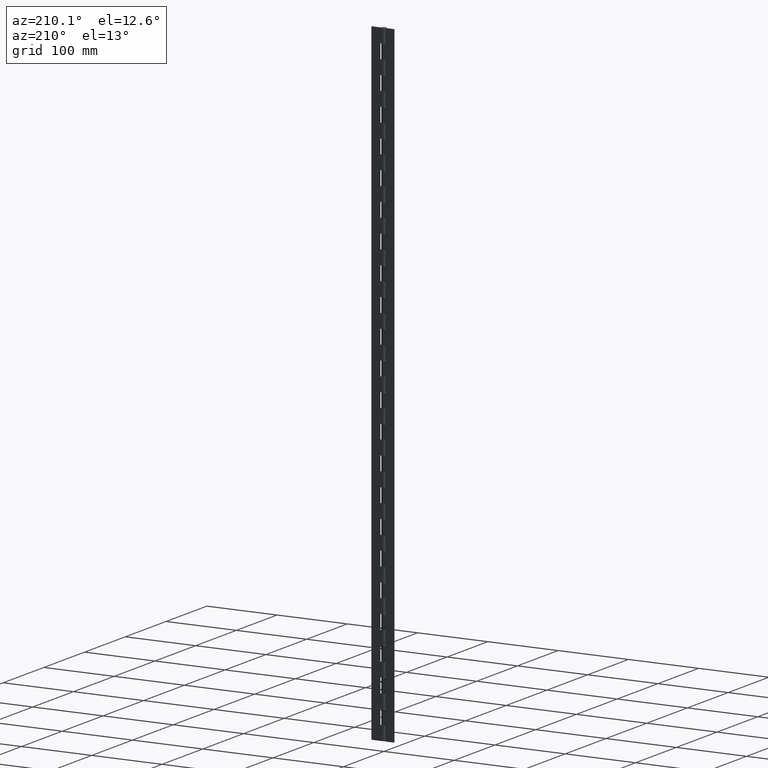
[diagram: clean part render]
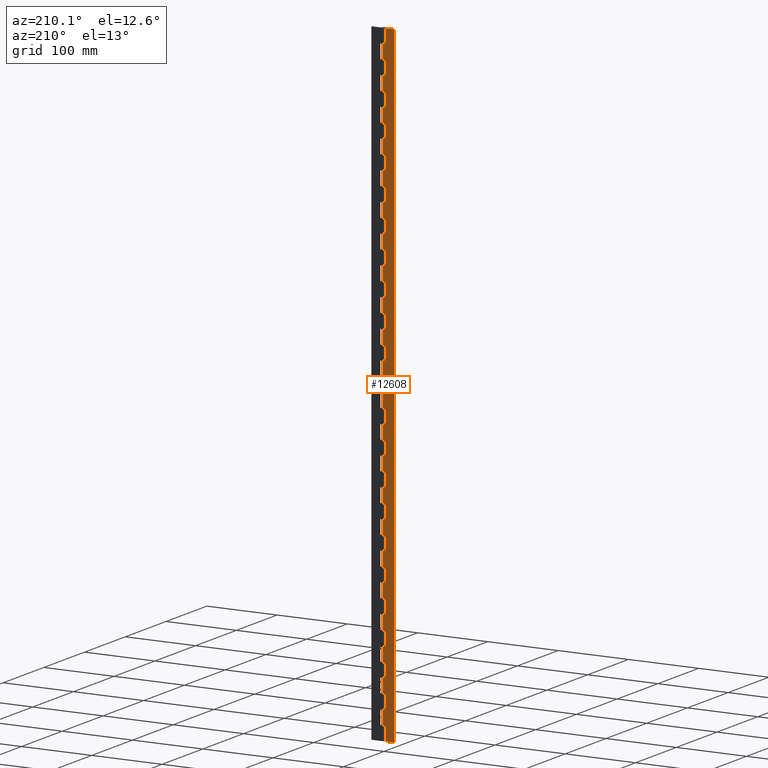
[diagram: same view with one face highlighted and labeled with its STEP entity id]
A machine part, auxiliary view. The second image highlights one B-rep face of the part: STEP entity #12608.
In plain terms, the highlighted face is a freeform B-spline surface patch.
Its self-contained STEP definition (entity closure, byte-faithful):
#6567=CARTESIAN_POINT('',(-4.0,3.250000000000000,0.0));
#6568=VERTEX_POINT('',#6567);
#6576=CARTESIAN_POINT('',(-4.0,3.250000000000000,20.000022000000051));
#6577=VERTEX_POINT('',#6576);
#6578=CARTESIAN_POINT('',(-4.0,3.250000000000000,20.000022000000051));
#6579=CARTESIAN_POINT('',(-4.0,3.250000000000000,0.0));
#6580=QUASI_UNIFORM_CURVE('',1,(#6578,#6579),.UNSPECIFIED.,.F.,.U.);
#6581=EDGE_CURVE('',#6577,#6568,#6580,.T.);
#6605=CARTESIAN_POINT('',(0.0,3.250000000000000,20.000022000000051));
#6606=VERTEX_POINT('',#6605);
#6660=CARTESIAN_POINT('',(0.0,3.250000000000000,20.000022000000051));
#6661=CARTESIAN_POINT('',(-4.0,3.250000000000000,20.000022000000051));
#6662=QUASI_UNIFORM_CURVE('',1,(#6660,#6661),.UNSPECIFIED.,.F.,.U.);
#6663=EDGE_CURVE('',#6606,#6577,#6662,.T.);
#6675=CARTESIAN_POINT('',(0.0,3.250000000000000,40.000021999999952));
#6676=VERTEX_POINT('',#6675);
#6696=CARTESIAN_POINT('',(-4.0,3.250000000000000,40.000021999999952));
#6697=VERTEX_POINT('',#6696);
#6698=CARTESIAN_POINT('',(0.0,3.250000000000000,40.000021999999952));
#6699=CARTESIAN_POINT('',(-4.0,3.250000000000000,40.000021999999952));
#6700=QUASI_UNIFORM_CURVE('',1,(#6698,#6699),.UNSPECIFIED.,.F.,.U.);
#6701=EDGE_CURVE('',#6676,#6697,#6700,.T.);
#6751=CARTESIAN_POINT('',(0.0,3.250000000000000,60.000022000000101));
#6752=VERTEX_POINT('',#6751);
#6809=CARTESIAN_POINT('',(-4.0,3.250000000000000,60.000022000000101));
#6810=VERTEX_POINT('',#6809);
#6816=CARTESIAN_POINT('',(-4.0,3.250000000000000,60.000022000000101));
#6817=CARTESIAN_POINT('',(0.0,3.250000000000000,60.000022000000101));
#6818=QUASI_UNIFORM_CURVE('',1,(#6816,#6817),.UNSPECIFIED.,.F.,.U.);
#6819=EDGE_CURVE('',#6810,#6752,#6818,.T.);
#6835=CARTESIAN_POINT('',(-4.0,3.250000000000000,40.000021999999952));
#6836=CARTESIAN_POINT('',(-4.0,3.250000000000000,60.000022000000101));
#6837=QUASI_UNIFORM_CURVE('',1,(#6835,#6836),.UNSPECIFIED.,.F.,.U.);
#6838=EDGE_CURVE('',#6697,#6810,#6837,.T.);
#6851=CARTESIAN_POINT('',(0.0,3.250000000000000,80.000021999999888));
#6852=VERTEX_POINT('',#6851);
#6872=CARTESIAN_POINT('',(-4.0,3.250000000000000,80.000021999999888));
#6873=VERTEX_POINT('',#6872);
#6874=CARTESIAN_POINT('',(0.0,3.250000000000000,80.000021999999888));
#6875=CARTESIAN_POINT('',(-4.0,3.250000000000000,80.000021999999888));
#6876=QUASI_UNIFORM_CURVE('',1,(#6874,#6875),.UNSPECIFIED.,.F.,.U.);
#6877=EDGE_CURVE('',#6852,#6873,#6876,.T.);
#6927=CARTESIAN_POINT('',(0.0,3.250000000000000,100.000022000000000));
#6928=VERTEX_POINT('',#6927);
#6985=CARTESIAN_POINT('',(-4.0,3.250000000000000,100.000022000000000));
#6986=VERTEX_POINT('',#6985);
#6992=CARTESIAN_POINT('',(-4.0,3.250000000000000,100.000022000000000));
#6993=CARTESIAN_POINT('',(0.0,3.250000000000000,100.000022000000000));
#6994=QUASI_UNIFORM_CURVE('',1,(#6992,#6993),.UNSPECIFIED.,.F.,.U.);
#6995=EDGE_CURVE('',#6986,#6928,#6994,.T.);
#7011=CARTESIAN_POINT('',(-4.0,3.250000000000000,80.000021999999888));
#7012=CARTESIAN_POINT('',(-4.0,3.250000000000000,100.000022000000000));
#7013=QUASI_UNIFORM_CURVE('',1,(#7011,#7012),.UNSPECIFIED.,.F.,.U.);
#7014=EDGE_CURVE('',#6873,#6986,#7013,.T.);
#7027=CARTESIAN_POINT('',(0.0,3.250000000000000,120.000022000000000));
#7028=VERTEX_POINT('',#7027);
#7048=CARTESIAN_POINT('',(-4.0,3.250000000000000,120.000022000000000));
#7049=VERTEX_POINT('',#7048);
#7050=CARTESIAN_POINT('',(0.0,3.250000000000000,120.000022000000000));
#7051=CARTESIAN_POINT('',(-4.0,3.250000000000000,120.000022000000000));
#7052=QUASI_UNIFORM_CURVE('',1,(#7050,#7051),.UNSPECIFIED.,.F.,.U.);
#7053=EDGE_CURVE('',#7028,#7049,#7052,.T.);
#7103=CARTESIAN_POINT('',(0.0,3.250000000000000,140.000022000000000));
#7104=VERTEX_POINT('',#7103);
#7161=CARTESIAN_POINT('',(-4.0,3.250000000000000,140.000022000000000));
#7162=VERTEX_POINT('',#7161);
#7168=CARTESIAN_POINT('',(-4.0,3.250000000000000,140.000022000000000));
#7169=CARTESIAN_POINT('',(0.0,3.250000000000000,140.000022000000000));
#7170=QUASI_UNIFORM_CURVE('',1,(#7168,#7169),.UNSPECIFIED.,.F.,.U.);
#7171=EDGE_CURVE('',#7162,#7104,#7170,.T.);
#7187=CARTESIAN_POINT('',(-4.0,3.250000000000000,120.000022000000000));
#7188=CARTESIAN_POINT('',(-4.0,3.250000000000000,140.000022000000000));
#7189=QUASI_UNIFORM_CURVE('',1,(#7187,#7188),.UNSPECIFIED.,.F.,.U.);
#7190=EDGE_CURVE('',#7049,#7162,#7189,.T.);
#7203=CARTESIAN_POINT('',(0.0,3.250000000000000,160.000022000000000));
#7204=VERTEX_POINT('',#7203);
#7224=CARTESIAN_POINT('',(-4.0,3.250000000000000,160.000022000000000));
#7225=VERTEX_POINT('',#7224);
#7226=CARTESIAN_POINT('',(0.0,3.250000000000000,160.000022000000000));
#7227=CARTESIAN_POINT('',(-4.0,3.250000000000000,160.000022000000000));
#7228=QUASI_UNIFORM_CURVE('',1,(#7226,#7227),.UNSPECIFIED.,.F.,.U.);
#7229=EDGE_CURVE('',#7204,#7225,#7228,.T.);
#7279=CARTESIAN_POINT('',(0.0,3.250000000000000,180.000022000000000));
#7280=VERTEX_POINT('',#7279);
#7337=CARTESIAN_POINT('',(-4.0,3.250000000000000,180.000022000000000));
#7338=VERTEX_POINT('',#7337);
#7344=CARTESIAN_POINT('',(-4.0,3.250000000000000,180.000022000000000));
#7345=CARTESIAN_POINT('',(0.0,3.250000000000000,180.000022000000000));
#7346=QUASI_UNIFORM_CURVE('',1,(#7344,#7345),.UNSPECIFIED.,.F.,.U.);
#7347=EDGE_CURVE('',#7338,#7280,#7346,.T.);
#7363=CARTESIAN_POINT('',(-4.0,3.250000000000000,160.000022000000000));
#7364=CARTESIAN_POINT('',(-4.0,3.250000000000000,180.000022000000000));
#7365=QUASI_UNIFORM_CURVE('',1,(#7363,#7364),.UNSPECIFIED.,.F.,.U.);
#7366=EDGE_CURVE('',#7225,#7338,#7365,.T.);
#7379=CARTESIAN_POINT('',(0.0,3.250000000000000,200.000022000000000));
#7380=VERTEX_POINT('',#7379);
#7400=CARTESIAN_POINT('',(-4.0,3.250000000000000,200.000022000000000));
#7401=VERTEX_POINT('',#7400);
#7402=CARTESIAN_POINT('',(0.0,3.250000000000000,200.000022000000000));
#7403=CARTESIAN_POINT('',(-4.0,3.250000000000000,200.000022000000000));
#7404=QUASI_UNIFORM_CURVE('',1,(#7402,#7403),.UNSPECIFIED.,.F.,.U.);
#7405=EDGE_CURVE('',#7380,#7401,#7404,.T.);
#7455=CARTESIAN_POINT('',(0.0,3.250000000000000,220.000022000000000));
#7456=VERTEX_POINT('',#7455);
#7513=CARTESIAN_POINT('',(-4.0,3.250000000000000,220.000022000000000));
#7514=VERTEX_POINT('',#7513);
#7520=CARTESIAN_POINT('',(-4.0,3.250000000000000,220.000022000000000));
#7521=CARTESIAN_POINT('',(0.0,3.250000000000000,220.000022000000000));
#7522=QUASI_UNIFORM_CURVE('',1,(#7520,#7521),.UNSPECIFIED.,.F.,.U.);
#7523=EDGE_CURVE('',#7514,#7456,#7522,.T.);
#7539=CARTESIAN_POINT('',(-4.0,3.250000000000000,200.000022000000000));
#7540=CARTESIAN_POINT('',(-4.0,3.250000000000000,220.000022000000000));
#7541=QUASI_UNIFORM_CURVE('',1,(#7539,#7540),.UNSPECIFIED.,.F.,.U.);
#7542=EDGE_CURVE('',#7401,#7514,#7541,.T.);
#7555=CARTESIAN_POINT('',(0.0,3.250000000000000,240.000022000000000));
#7556=VERTEX_POINT('',#7555);
#7576=CARTESIAN_POINT('',(-4.0,3.250000000000000,240.000022000000000));
#7577=VERTEX_POINT('',#7576);
#7578=CARTESIAN_POINT('',(0.0,3.250000000000000,240.000022000000000));
#7579=CARTESIAN_POINT('',(-4.0,3.250000000000000,240.000022000000000));
#7580=QUASI_UNIFORM_CURVE('',1,(#7578,#7579),.UNSPECIFIED.,.F.,.U.);
#7581=EDGE_CURVE('',#7556,#7577,#7580,.T.);
#7631=CARTESIAN_POINT('',(0.0,3.250000000000000,260.000022000000000));
#7632=VERTEX_POINT('',#7631);
#7689=CARTESIAN_POINT('',(-4.0,3.250000000000000,260.000022000000000));
#7690=VERTEX_POINT('',#7689);
#7696=CARTESIAN_POINT('',(-4.0,3.250000000000000,260.000022000000000));
#7697=CARTESIAN_POINT('',(0.0,3.250000000000000,260.000022000000000));
#7698=QUASI_UNIFORM_CURVE('',1,(#7696,#7697),.UNSPECIFIED.,.F.,.U.);
#7699=EDGE_CURVE('',#7690,#7632,#7698,.T.);
#7715=CARTESIAN_POINT('',(-4.0,3.250000000000000,240.000022000000000));
#7716=CARTESIAN_POINT('',(-4.0,3.250000000000000,260.000022000000000));
#7717=QUASI_UNIFORM_CURVE('',1,(#7715,#7716),.UNSPECIFIED.,.F.,.U.);
#7718=EDGE_CURVE('',#7577,#7690,#7717,.T.);
#7731=CARTESIAN_POINT('',(0.0,3.250000000000000,280.000022000000000));
#7732=VERTEX_POINT('',#7731);
#7752=CARTESIAN_POINT('',(-4.0,3.250000000000000,280.000022000000000));
#7753=VERTEX_POINT('',#7752);
#7754=CARTESIAN_POINT('',(0.0,3.250000000000000,280.000022000000000));
#7755=CARTESIAN_POINT('',(-4.0,3.250000000000000,280.000022000000000));
#7756=QUASI_UNIFORM_CURVE('',1,(#7754,#7755),.UNSPECIFIED.,.F.,.U.);
#7757=EDGE_CURVE('',#7732,#7753,#7756,.T.);
#7807=CARTESIAN_POINT('',(0.0,3.250000000000000,300.000022000000000));
#7808=VERTEX_POINT('',#7807);
#7865=CARTESIAN_POINT('',(-4.0,3.250000000000000,300.000022000000000));
#7866=VERTEX_POINT('',#7865);
#7872=CARTESIAN_POINT('',(-4.0,3.250000000000000,300.000022000000000));
#7873=CARTESIAN_POINT('',(0.0,3.250000000000000,300.000022000000000));
#7874=QUASI_UNIFORM_CURVE('',1,(#7872,#7873),.UNSPECIFIED.,.F.,.U.);
#7875=EDGE_CURVE('',#7866,#7808,#7874,.T.);
#7891=CARTESIAN_POINT('',(-4.0,3.250000000000000,280.000022000000000));
#7892=CARTESIAN_POINT('',(-4.0,3.250000000000000,300.000022000000000));
#7893=QUASI_UNIFORM_CURVE('',1,(#7891,#7892),.UNSPECIFIED.,.F.,.U.);
#7894=EDGE_CURVE('',#7753,#7866,#7893,.T.);
#7907=CARTESIAN_POINT('',(0.0,3.250000000000000,320.000022000000000));
#7908=VERTEX_POINT('',#7907);
#7928=CARTESIAN_POINT('',(-4.0,3.250000000000000,320.000022000000000));
#7929=VERTEX_POINT('',#7928);
#7930=CARTESIAN_POINT('',(0.0,3.250000000000000,320.000022000000000));
#7931=CARTESIAN_POINT('',(-4.0,3.250000000000000,320.000022000000000));
#7932=QUASI_UNIFORM_CURVE('',1,(#7930,#7931),.UNSPECIFIED.,.F.,.U.);
#7933=EDGE_CURVE('',#7908,#7929,#7932,.T.);
#7983=CARTESIAN_POINT('',(0.0,3.250000000000000,340.000022000000000));
#7984=VERTEX_POINT('',#7983);
#8041=CARTESIAN_POINT('',(-4.0,3.250000000000000,340.000022000000000));
#8042=VERTEX_POINT('',#8041);
#8048=CARTESIAN_POINT('',(-4.0,3.250000000000000,340.000022000000000));
#8049=CARTESIAN_POINT('',(0.0,3.250000000000000,340.000022000000000));
#8050=QUASI_UNIFORM_CURVE('',1,(#8048,#8049),.UNSPECIFIED.,.F.,.U.);
#8051=EDGE_CURVE('',#8042,#7984,#8050,.T.);
#8067=CARTESIAN_POINT('',(-4.0,3.250000000000000,320.000022000000000));
#8068=CARTESIAN_POINT('',(-4.0,3.250000000000000,340.000022000000000));
#8069=QUASI_UNIFORM_CURVE('',1,(#8067,#8068),.UNSPECIFIED.,.F.,.U.);
#8070=EDGE_CURVE('',#7929,#8042,#8069,.T.);
#8083=CARTESIAN_POINT('',(0.0,3.250000000000000,360.000022000000000));
#8084=VERTEX_POINT('',#8083);
#8104=CARTESIAN_POINT('',(-4.0,3.250000000000000,360.000022000000000));
#8105=VERTEX_POINT('',#8104);
#8106=CARTESIAN_POINT('',(0.0,3.250000000000000,360.000022000000000));
#8107=CARTESIAN_POINT('',(-4.0,3.250000000000000,360.000022000000000));
#8108=QUASI_UNIFORM_CURVE('',1,(#8106,#8107),.UNSPECIFIED.,.F.,.U.);
#8109=EDGE_CURVE('',#8084,#8105,#8108,.T.);
#8159=CARTESIAN_POINT('',(0.0,3.250000000000000,380.000022000000000));
#8160=VERTEX_POINT('',#8159);
#8217=CARTESIAN_POINT('',(-4.0,3.250000000000000,380.000022000000000));
#8218=VERTEX_POINT('',#8217);
#8224=CARTESIAN_POINT('',(-4.0,3.250000000000000,380.000022000000000));
#8225=CARTESIAN_POINT('',(0.0,3.250000000000000,380.000022000000000));
#8226=QUASI_UNIFORM_CURVE('',1,(#8224,#8225),.UNSPECIFIED.,.F.,.U.);
#8227=EDGE_CURVE('',#8218,#8160,#8226,.T.);
#8243=CARTESIAN_POINT('',(-4.0,3.250000000000000,360.000022000000000));
#8244=CARTESIAN_POINT('',(-4.0,3.250000000000000,380.000022000000000));
#8245=QUASI_UNIFORM_CURVE('',1,(#8243,#8244),.UNSPECIFIED.,.F.,.U.);
#8246=EDGE_CURVE('',#8105,#8218,#8245,.T.);
#8259=CARTESIAN_POINT('',(0.0,3.250000000000000,400.000022000000000));
#8260=VERTEX_POINT('',#8259);
#8280=CARTESIAN_POINT('',(-4.0,3.250000000000000,400.000022000000000));
#8281=VERTEX_POINT('',#8280);
#8282=CARTESIAN_POINT('',(0.0,3.250000000000000,400.000022000000000));
#8283=CARTESIAN_POINT('',(-4.0,3.250000000000000,400.000022000000000));
#8284=QUASI_UNIFORM_CURVE('',1,(#8282,#8283),.UNSPECIFIED.,.F.,.U.);
#8285=EDGE_CURVE('',#8260,#8281,#8284,.T.);
#8335=CARTESIAN_POINT('',(0.0,3.250000000000000,420.000021999999890));
#8336=VERTEX_POINT('',#8335);
#8393=CARTESIAN_POINT('',(-4.0,3.250000000000000,420.000021999999890));
#8394=VERTEX_POINT('',#8393);
#8400=CARTESIAN_POINT('',(-4.0,3.250000000000000,420.000021999999890));
#8401=CARTESIAN_POINT('',(0.0,3.250000000000000,420.000021999999890));
#8402=QUASI_UNIFORM_CURVE('',1,(#8400,#8401),.UNSPECIFIED.,.F.,.U.);
#8403=EDGE_CURVE('',#8394,#8336,#8402,.T.);
#8419=CARTESIAN_POINT('',(-4.0,3.250000000000000,400.000022000000000));
#8420=CARTESIAN_POINT('',(-4.0,3.250000000000000,420.000021999999890));
#8421=QUASI_UNIFORM_CURVE('',1,(#8419,#8420),.UNSPECIFIED.,.F.,.U.);
#8422=EDGE_CURVE('',#8281,#8394,#8421,.T.);
#8435=CARTESIAN_POINT('',(0.0,3.250000000000000,440.000022000000000));
#8436=VERTEX_POINT('',#8435);
#8456=CARTESIAN_POINT('',(-4.0,3.250000000000000,440.000022000000000));
#8457=VERTEX_POINT('',#8456);
#8458=CARTESIAN_POINT('',(0.0,3.250000000000000,440.000022000000000));
#8459=CARTESIAN_POINT('',(-4.0,3.250000000000000,440.000022000000000));
#8460=QUASI_UNIFORM_CURVE('',1,(#8458,#8459),.UNSPECIFIED.,.F.,.U.);
#8461=EDGE_CURVE('',#8436,#8457,#8460,.T.);
#8511=CARTESIAN_POINT('',(0.0,3.250000000000000,460.000022000000000));
#8512=VERTEX_POINT('',#8511);
#8569=CARTESIAN_POINT('',(-4.0,3.250000000000000,460.000022000000000));
#8570=VERTEX_POINT('',#8569);
#8576=CARTESIAN_POINT('',(-4.0,3.250000000000000,460.000022000000000));
#8577=CARTESIAN_POINT('',(0.0,3.250000000000000,460.000022000000000));
#8578=QUASI_UNIFORM_CURVE('',1,(#8576,#8577),.UNSPECIFIED.,.F.,.U.);
#8579=EDGE_CURVE('',#8570,#8512,#8578,.T.);
#8595=CARTESIAN_POINT('',(-4.0,3.250000000000000,440.000022000000000));
#8596=CARTESIAN_POINT('',(-4.0,3.250000000000000,460.000022000000000));
#8597=QUASI_UNIFORM_CURVE('',1,(#8595,#8596),.UNSPECIFIED.,.F.,.U.);
#8598=EDGE_CURVE('',#8457,#8570,#8597,.T.);
#8611=CARTESIAN_POINT('',(0.0,3.250000000000000,480.000022000000000));
#8612=VERTEX_POINT('',#8611);
#8632=CARTESIAN_POINT('',(-4.0,3.250000000000000,480.000022000000000));
#8633=VERTEX_POINT('',#8632);
#8634=CARTESIAN_POINT('',(0.0,3.250000000000000,480.000022000000000));
#8635=CARTESIAN_POINT('',(-4.0,3.250000000000000,480.000022000000000));
#8636=QUASI_UNIFORM_CURVE('',1,(#8634,#8635),.UNSPECIFIED.,.F.,.U.);
#8637=EDGE_CURVE('',#8612,#8633,#8636,.T.);
#8687=CARTESIAN_POINT('',(0.0,3.250000000000000,500.000022000000110));
#8688=VERTEX_POINT('',#8687);
#8745=CARTESIAN_POINT('',(-4.0,3.250000000000000,500.000022000000110));
#8746=VERTEX_POINT('',#8745);
#8752=CARTESIAN_POINT('',(-4.0,3.250000000000000,500.000022000000110));
#8753=CARTESIAN_POINT('',(0.0,3.250000000000000,500.000022000000110));
#8754=QUASI_UNIFORM_CURVE('',1,(#8752,#8753),.UNSPECIFIED.,.F.,.U.);
#8755=EDGE_CURVE('',#8746,#8688,#8754,.T.);
#8771=CARTESIAN_POINT('',(-4.0,3.250000000000000,480.000022000000000));
#8772=CARTESIAN_POINT('',(-4.0,3.250000000000000,500.000022000000110));
#8773=QUASI_UNIFORM_CURVE('',1,(#8771,#8772),.UNSPECIFIED.,.F.,.U.);
#8774=EDGE_CURVE('',#8633,#8746,#8773,.T.);
#8787=CARTESIAN_POINT('',(0.0,3.250000000000000,520.000021999999940));
#8788=VERTEX_POINT('',#8787);
#8808=CARTESIAN_POINT('',(-4.0,3.250000000000000,520.000021999999940));
#8809=VERTEX_POINT('',#8808);
#8810=CARTESIAN_POINT('',(0.0,3.250000000000000,520.000021999999940));
#8811=CARTESIAN_POINT('',(-4.0,3.250000000000000,520.000021999999940));
#8812=QUASI_UNIFORM_CURVE('',1,(#8810,#8811),.UNSPECIFIED.,.F.,.U.);
#8813=EDGE_CURVE('',#8788,#8809,#8812,.T.);
#8863=CARTESIAN_POINT('',(0.0,3.250000000000000,540.000021999999940));
#8864=VERTEX_POINT('',#8863);
#8921=CARTESIAN_POINT('',(-4.0,3.250000000000000,540.000021999999940));
#8922=VERTEX_POINT('',#8921);
#8928=CARTESIAN_POINT('',(-4.0,3.250000000000000,540.000021999999940));
#8929=CARTESIAN_POINT('',(0.0,3.250000000000000,540.000021999999940));
#8930=QUASI_UNIFORM_CURVE('',1,(#8928,#8929),.UNSPECIFIED.,.F.,.U.);
#8931=EDGE_CURVE('',#8922,#8864,#8930,.T.);
#8947=CARTESIAN_POINT('',(-4.0,3.250000000000000,520.000021999999940));
#8948=CARTESIAN_POINT('',(-4.0,3.250000000000000,540.000021999999940));
#8949=QUASI_UNIFORM_CURVE('',1,(#8947,#8948),.UNSPECIFIED.,.F.,.U.);
#8950=EDGE_CURVE('',#8809,#8922,#8949,.T.);
#8963=CARTESIAN_POINT('',(0.0,3.250000000000000,560.000021999999940));
#8964=VERTEX_POINT('',#8963);
#8984=CARTESIAN_POINT('',(-4.0,3.250000000000000,560.000021999999940));
#8985=VERTEX_POINT('',#8984);
#8986=CARTESIAN_POINT('',(0.0,3.250000000000000,560.000021999999940));
#8987=CARTESIAN_POINT('',(-4.0,3.250000000000000,560.000021999999940));
#8988=QUASI_UNIFORM_CURVE('',1,(#8986,#8987),.UNSPECIFIED.,.F.,.U.);
#8989=EDGE_CURVE('',#8964,#8985,#8988,.T.);
#9039=CARTESIAN_POINT('',(0.0,3.250000000000000,580.000022000000060));
#9040=VERTEX_POINT('',#9039);
#9097=CARTESIAN_POINT('',(-4.0,3.250000000000000,580.000022000000060));
#9098=VERTEX_POINT('',#9097);
#9104=CARTESIAN_POINT('',(-4.0,3.250000000000000,580.000022000000060));
#9105=CARTESIAN_POINT('',(0.0,3.250000000000000,580.000022000000060));
#9106=QUASI_UNIFORM_CURVE('',1,(#9104,#9105),.UNSPECIFIED.,.F.,.U.);
#9107=EDGE_CURVE('',#9098,#9040,#9106,.T.);
#9123=CARTESIAN_POINT('',(-4.0,3.250000000000000,560.000021999999940));
#9124=CARTESIAN_POINT('',(-4.0,3.250000000000000,580.000022000000060));
#9125=QUASI_UNIFORM_CURVE('',1,(#9123,#9124),.UNSPECIFIED.,.F.,.U.);
#9126=EDGE_CURVE('',#8985,#9098,#9125,.T.);
#9139=CARTESIAN_POINT('',(0.0,3.250000000000000,600.000022000000060));
#9140=VERTEX_POINT('',#9139);
#9160=CARTESIAN_POINT('',(-4.0,3.250000000000000,600.000022000000060));
#9161=VERTEX_POINT('',#9160);
#9162=CARTESIAN_POINT('',(0.0,3.250000000000000,600.000022000000060));
#9163=CARTESIAN_POINT('',(-4.0,3.250000000000000,600.000022000000060));
#9164=QUASI_UNIFORM_CURVE('',1,(#9162,#9163),.UNSPECIFIED.,.F.,.U.);
#9165=EDGE_CURVE('',#9140,#9161,#9164,.T.);
#9215=CARTESIAN_POINT('',(0.0,3.250000000000000,620.000022000000060));
#9216=VERTEX_POINT('',#9215);
#9273=CARTESIAN_POINT('',(-4.0,3.250000000000000,620.000022000000060));
#9274=VERTEX_POINT('',#9273);
#9280=CARTESIAN_POINT('',(-4.0,3.250000000000000,620.000022000000060));
#9281=CARTESIAN_POINT('',(0.0,3.250000000000000,620.000022000000060));
#9282=QUASI_UNIFORM_CURVE('',1,(#9280,#9281),.UNSPECIFIED.,.F.,.U.);
#9283=EDGE_CURVE('',#9274,#9216,#9282,.T.);
#9299=CARTESIAN_POINT('',(-4.0,3.250000000000000,600.000022000000060));
#9300=CARTESIAN_POINT('',(-4.0,3.250000000000000,620.000022000000060));
#9301=QUASI_UNIFORM_CURVE('',1,(#9299,#9300),.UNSPECIFIED.,.F.,.U.);
#9302=EDGE_CURVE('',#9161,#9274,#9301,.T.);
#9315=CARTESIAN_POINT('',(0.0,3.250000000000000,640.000021999999940));
#9316=VERTEX_POINT('',#9315);
#9336=CARTESIAN_POINT('',(-4.0,3.250000000000000,640.000021999999940));
#9337=VERTEX_POINT('',#9336);
#9338=CARTESIAN_POINT('',(0.0,3.250000000000000,640.000021999999940));
#9339=CARTESIAN_POINT('',(-4.0,3.250000000000000,640.000021999999940));
#9340=QUASI_UNIFORM_CURVE('',1,(#9338,#9339),.UNSPECIFIED.,.F.,.U.);
#9341=EDGE_CURVE('',#9316,#9337,#9340,.T.);
#9391=CARTESIAN_POINT('',(0.0,3.250000000000000,660.000021999999940));
#9392=VERTEX_POINT('',#9391);
#9449=CARTESIAN_POINT('',(-4.0,3.250000000000000,660.000021999999940));
#9450=VERTEX_POINT('',#9449);
#9456=CARTESIAN_POINT('',(-4.0,3.250000000000000,660.000021999999940));
#9457=CARTESIAN_POINT('',(0.0,3.250000000000000,660.000021999999940));
#9458=QUASI_UNIFORM_CURVE('',1,(#9456,#9457),.UNSPECIFIED.,.F.,.U.);
#9459=EDGE_CURVE('',#9450,#9392,#9458,.T.);
#9475=CARTESIAN_POINT('',(-4.0,3.250000000000000,640.000021999999940));
#9476=CARTESIAN_POINT('',(-4.0,3.250000000000000,660.000021999999940));
#9477=QUASI_UNIFORM_CURVE('',1,(#9475,#9476),.UNSPECIFIED.,.F.,.U.);
#9478=EDGE_CURVE('',#9337,#9450,#9477,.T.);
#9491=CARTESIAN_POINT('',(0.0,3.250000000000000,680.000021999999940));
#9492=VERTEX_POINT('',#9491);
#9512=CARTESIAN_POINT('',(-4.0,3.250000000000000,680.000021999999940));
#9513=VERTEX_POINT('',#9512);
#9514=CARTESIAN_POINT('',(0.0,3.250000000000000,680.000021999999940));
#9515=CARTESIAN_POINT('',(-4.0,3.250000000000000,680.000021999999940));
#9516=QUASI_UNIFORM_CURVE('',1,(#9514,#9515),.UNSPECIFIED.,.F.,.U.);
#9517=EDGE_CURVE('',#9492,#9513,#9516,.T.);
#9567=CARTESIAN_POINT('',(0.0,3.250000000000000,700.000021999999940));
#9568=VERTEX_POINT('',#9567);
#9625=CARTESIAN_POINT('',(-4.0,3.250000000000000,700.000021999999940));
#9626=VERTEX_POINT('',#9625);
#9632=CARTESIAN_POINT('',(-4.0,3.250000000000000,700.000021999999940));
#9633=CARTESIAN_POINT('',(0.0,3.250000000000000,700.000021999999940));
#9634=QUASI_UNIFORM_CURVE('',1,(#9632,#9633),.UNSPECIFIED.,.F.,.U.);
#9635=EDGE_CURVE('',#9626,#9568,#9634,.T.);
#9651=CARTESIAN_POINT('',(-4.0,3.250000000000000,680.000021999999940));
#9652=CARTESIAN_POINT('',(-4.0,3.250000000000000,700.000021999999940));
#9653=QUASI_UNIFORM_CURVE('',1,(#9651,#9652),.UNSPECIFIED.,.F.,.U.);
#9654=EDGE_CURVE('',#9513,#9626,#9653,.T.);
#9667=CARTESIAN_POINT('',(0.0,3.250000000000000,720.000022000000060));
#9668=VERTEX_POINT('',#9667);
#9688=CARTESIAN_POINT('',(-4.0,3.250000000000000,720.000022000000060));
#9689=VERTEX_POINT('',#9688);
#9690=CARTESIAN_POINT('',(0.0,3.250000000000000,720.000022000000060));
#9691=CARTESIAN_POINT('',(-4.0,3.250000000000000,720.000022000000060));
#9692=QUASI_UNIFORM_CURVE('',1,(#9690,#9691),.UNSPECIFIED.,.F.,.U.);
#9693=EDGE_CURVE('',#9668,#9689,#9692,.T.);
#9743=CARTESIAN_POINT('',(0.0,3.250000000000000,740.000022000000060));
#9744=VERTEX_POINT('',#9743);
#9801=CARTESIAN_POINT('',(-4.0,3.250000000000000,740.000022000000060));
#9802=VERTEX_POINT('',#9801);
#9808=CARTESIAN_POINT('',(-4.0,3.250000000000000,740.000022000000060));
#9809=CARTESIAN_POINT('',(0.0,3.250000000000000,740.000022000000060));
#9810=QUASI_UNIFORM_CURVE('',1,(#9808,#9809),.UNSPECIFIED.,.F.,.U.);
#9811=EDGE_CURVE('',#9802,#9744,#9810,.T.);
#9827=CARTESIAN_POINT('',(-4.0,3.250000000000000,720.000022000000060));
#9828=CARTESIAN_POINT('',(-4.0,3.250000000000000,740.000022000000060));
#9829=QUASI_UNIFORM_CURVE('',1,(#9827,#9828),.UNSPECIFIED.,.F.,.U.);
#9830=EDGE_CURVE('',#9689,#9802,#9829,.T.);
#9843=CARTESIAN_POINT('',(0.0,3.250000000000000,760.000022000000060));
#9844=VERTEX_POINT('',#9843);
#9864=CARTESIAN_POINT('',(-4.0,3.250000000000000,760.000022000000060));
#9865=VERTEX_POINT('',#9864);
#9866=CARTESIAN_POINT('',(0.0,3.250000000000000,760.000022000000060));
#9867=CARTESIAN_POINT('',(-4.0,3.250000000000000,760.000022000000060));
#9868=QUASI_UNIFORM_CURVE('',1,(#9866,#9867),.UNSPECIFIED.,.F.,.U.);
#9869=EDGE_CURVE('',#9844,#9865,#9868,.T.);
#9919=CARTESIAN_POINT('',(0.0,3.250000000000000,780.000021999999940));
#9920=VERTEX_POINT('',#9919);
#9977=CARTESIAN_POINT('',(-4.0,3.250000000000000,780.000021999999940));
#9978=VERTEX_POINT('',#9977);
#9984=CARTESIAN_POINT('',(-4.0,3.250000000000000,780.000021999999940));
#9985=CARTESIAN_POINT('',(0.0,3.250000000000000,780.000021999999940));
#9986=QUASI_UNIFORM_CURVE('',1,(#9984,#9985),.UNSPECIFIED.,.F.,.U.);
#9987=EDGE_CURVE('',#9978,#9920,#9986,.T.);
#10003=CARTESIAN_POINT('',(-4.0,3.250000000000000,760.000022000000060));
#10004=CARTESIAN_POINT('',(-4.0,3.250000000000000,780.000021999999940));
#10005=QUASI_UNIFORM_CURVE('',1,(#10003,#10004),.UNSPECIFIED.,.F.,.U.);
#10006=EDGE_CURVE('',#9865,#9978,#10005,.T.);
#10019=CARTESIAN_POINT('',(0.0,3.250000000000000,800.000021999999940));
#10020=VERTEX_POINT('',#10019);
#10040=CARTESIAN_POINT('',(-4.0,3.250000000000000,800.000021999999940));
#10041=VERTEX_POINT('',#10040);
#10042=CARTESIAN_POINT('',(0.0,3.250000000000000,800.000021999999940));
#10043=CARTESIAN_POINT('',(-4.0,3.250000000000000,800.000021999999940));
#10044=QUASI_UNIFORM_CURVE('',1,(#10042,#10043),.UNSPECIFIED.,.F.,.U.);
#10045=EDGE_CURVE('',#10020,#10041,#10044,.T.);
#10095=CARTESIAN_POINT('',(0.0,3.250000000000000,820.000021999999940));
#10096=VERTEX_POINT('',#10095);
#10153=CARTESIAN_POINT('',(-4.0,3.250000000000000,820.000021999999940));
#10154=VERTEX_POINT('',#10153);
#10160=CARTESIAN_POINT('',(-4.0,3.250000000000000,820.000021999999940));
#10161=CARTESIAN_POINT('',(0.0,3.250000000000000,820.000021999999940));
#10162=QUASI_UNIFORM_CURVE('',1,(#10160,#10161),.UNSPECIFIED.,.F.,.U.);
#10163=EDGE_CURVE('',#10154,#10096,#10162,.T.);
#10179=CARTESIAN_POINT('',(-4.0,3.250000000000000,800.000021999999940));
#10180=CARTESIAN_POINT('',(-4.0,3.250000000000000,820.000021999999940));
#10181=QUASI_UNIFORM_CURVE('',1,(#10179,#10180),.UNSPECIFIED.,.F.,.U.);
#10182=EDGE_CURVE('',#10041,#10154,#10181,.T.);
#10195=CARTESIAN_POINT('',(0.0,3.250000000000000,840.000022000000060));
#10196=VERTEX_POINT('',#10195);
#10216=CARTESIAN_POINT('',(-4.0,3.250000000000000,840.000022000000060));
#10217=VERTEX_POINT('',#10216);
#10218=CARTESIAN_POINT('',(0.0,3.250000000000000,840.000022000000060));
#10219=CARTESIAN_POINT('',(-4.0,3.250000000000000,840.000022000000060));
#10220=QUASI_UNIFORM_CURVE('',1,(#10218,#10219),.UNSPECIFIED.,.F.,.U.);
#10221=EDGE_CURVE('',#10196,#10217,#10220,.T.);
#10271=CARTESIAN_POINT('',(0.0,3.250000000000000,860.000022000000060));
#10272=VERTEX_POINT('',#10271);
#10329=CARTESIAN_POINT('',(-4.0,3.250000000000000,860.000022000000060));
#10330=VERTEX_POINT('',#10329);
#10336=CARTESIAN_POINT('',(-4.0,3.250000000000000,860.000022000000060));
#10337=CARTESIAN_POINT('',(0.0,3.250000000000000,860.000022000000060));
#10338=QUASI_UNIFORM_CURVE('',1,(#10336,#10337),.UNSPECIFIED.,.F.,.U.);
#10339=EDGE_CURVE('',#10330,#10272,#10338,.T.);
#10355=CARTESIAN_POINT('',(-4.0,3.250000000000000,840.000022000000060));
#10356=CARTESIAN_POINT('',(-4.0,3.250000000000000,860.000022000000060));
#10357=QUASI_UNIFORM_CURVE('',1,(#10355,#10356),.UNSPECIFIED.,.F.,.U.);
#10358=EDGE_CURVE('',#10217,#10330,#10357,.T.);
#10371=CARTESIAN_POINT('',(0.0,3.250000000000000,880.000022000000060));
#10372=VERTEX_POINT('',#10371);
#10392=CARTESIAN_POINT('',(-4.0,3.250000000000000,880.000022000000060));
#10393=VERTEX_POINT('',#10392);
#10394=CARTESIAN_POINT('',(0.0,3.250000000000000,880.000022000000060));
#10395=CARTESIAN_POINT('',(-4.0,3.250000000000000,880.000022000000060));
#10396=QUASI_UNIFORM_CURVE('',1,(#10394,#10395),.UNSPECIFIED.,.F.,.U.);
#10397=EDGE_CURVE('',#10372,#10393,#10396,.T.);
#10455=CARTESIAN_POINT('',(-4.0,3.250000000000000,900.000021999999940));
#10456=VERTEX_POINT('',#10455);
#10457=CARTESIAN_POINT('',(-4.0,3.250000000000000,880.000022000000060));
#10458=CARTESIAN_POINT('',(-4.0,3.250000000000000,900.000021999999940));
#10459=QUASI_UNIFORM_CURVE('',1,(#10457,#10458),.UNSPECIFIED.,.F.,.U.);
#10460=EDGE_CURVE('',#10393,#10456,#10459,.T.);
#10483=CARTESIAN_POINT('',(-16.0,3.250000000000000,900.000021999999940));
#10484=VERTEX_POINT('',#10483);
#10485=CARTESIAN_POINT('',(-16.0,3.250000000000000,900.000021999999940));
#10486=CARTESIAN_POINT('',(-4.0,3.250000000000000,900.000021999999940));
#10487=QUASI_UNIFORM_CURVE('',1,(#10485,#10486),.UNSPECIFIED.,.F.,.U.);
#10488=EDGE_CURVE('',#10484,#10456,#10487,.T.);
#10526=CARTESIAN_POINT('',(0.0,3.250000000000000,880.000022000000060));
#10527=CARTESIAN_POINT('',(0.0,3.250000000000000,860.000022000000060));
#10528=QUASI_UNIFORM_CURVE('',1,(#10526,#10527),.UNSPECIFIED.,.F.,.U.);
#10529=EDGE_CURVE('',#10372,#10272,#10528,.T.);
#10542=CARTESIAN_POINT('',(-16.0,3.250000000000000,0.0));
#10543=VERTEX_POINT('',#10542);
#10555=CARTESIAN_POINT('',(-16.0,3.250000000000000,900.000021999999940));
#10556=CARTESIAN_POINT('',(-16.0,3.250000000000000,0.0));
#10557=QUASI_UNIFORM_CURVE('',1,(#10555,#10556),.UNSPECIFIED.,.F.,.U.);
#10558=EDGE_CURVE('',#10484,#10543,#10557,.T.);
#10640=CARTESIAN_POINT('',(0.0,3.250000000000000,840.000022000000060));
#10641=CARTESIAN_POINT('',(0.0,3.250000000000000,820.000021999999940));
#10642=QUASI_UNIFORM_CURVE('',1,(#10640,#10641),.UNSPECIFIED.,.F.,.U.);
#10643=EDGE_CURVE('',#10196,#10096,#10642,.T.);
#10726=CARTESIAN_POINT('',(0.0,3.250000000000000,800.000021999999940));
#10727=CARTESIAN_POINT('',(0.0,3.250000000000000,780.000021999999940));
#10728=QUASI_UNIFORM_CURVE('',1,(#10726,#10727),.UNSPECIFIED.,.F.,.U.);
#10729=EDGE_CURVE('',#10020,#9920,#10728,.T.);
#10812=CARTESIAN_POINT('',(0.0,3.250000000000000,760.000022000000060));
#10813=CARTESIAN_POINT('',(0.0,3.250000000000000,740.000022000000060));
#10814=QUASI_UNIFORM_CURVE('',1,(#10812,#10813),.UNSPECIFIED.,.F.,.U.);
#10815=EDGE_CURVE('',#9844,#9744,#10814,.T.);
#10898=CARTESIAN_POINT('',(0.0,3.250000000000000,720.000022000000060));
#10899=CARTESIAN_POINT('',(0.0,3.250000000000000,700.000021999999940));
#10900=QUASI_UNIFORM_CURVE('',1,(#10898,#10899),.UNSPECIFIED.,.F.,.U.);
#10901=EDGE_CURVE('',#9668,#9568,#10900,.T.);
#10984=CARTESIAN_POINT('',(0.0,3.250000000000000,680.000021999999940));
#10985=CARTESIAN_POINT('',(0.0,3.250000000000000,660.000021999999940));
#10986=QUASI_UNIFORM_CURVE('',1,(#10984,#10985),.UNSPECIFIED.,.F.,.U.);
#10987=EDGE_CURVE('',#9492,#9392,#10986,.T.);
#11070=CARTESIAN_POINT('',(0.0,3.250000000000000,640.000021999999940));
#11071=CARTESIAN_POINT('',(0.0,3.250000000000000,620.000022000000060));
#11072=QUASI_UNIFORM_CURVE('',1,(#11070,#11071),.UNSPECIFIED.,.F.,.U.);
#11073=EDGE_CURVE('',#9316,#9216,#11072,.T.);
#11156=CARTESIAN_POINT('',(0.0,3.250000000000000,600.000022000000060));
#11157=CARTESIAN_POINT('',(0.0,3.250000000000000,580.000022000000060));
#11158=QUASI_UNIFORM_CURVE('',1,(#11156,#11157),.UNSPECIFIED.,.F.,.U.);
#11159=EDGE_CURVE('',#9140,#9040,#11158,.T.);
#11242=CARTESIAN_POINT('',(0.0,3.250000000000000,560.000021999999940));
#11243=CARTESIAN_POINT('',(0.0,3.250000000000000,540.000021999999940));
#11244=QUASI_UNIFORM_CURVE('',1,(#11242,#11243),.UNSPECIFIED.,.F.,.U.);
#11245=EDGE_CURVE('',#8964,#8864,#11244,.T.);
#11328=CARTESIAN_POINT('',(0.0,3.250000000000000,520.000021999999940));
#11329=CARTESIAN_POINT('',(0.0,3.250000000000000,500.000022000000110));
#11330=QUASI_UNIFORM_CURVE('',1,(#11328,#11329),.UNSPECIFIED.,.F.,.U.);
#11331=EDGE_CURVE('',#8788,#8688,#11330,.T.);
#11414=CARTESIAN_POINT('',(0.0,3.250000000000000,480.000022000000000));
#11415=CARTESIAN_POINT('',(0.0,3.250000000000000,460.000022000000000));
#11416=QUASI_UNIFORM_CURVE('',1,(#11414,#11415),.UNSPECIFIED.,.F.,.U.);
#11417=EDGE_CURVE('',#8612,#8512,#11416,.T.);
#11500=CARTESIAN_POINT('',(0.0,3.250000000000000,440.000022000000000));
#11501=CARTESIAN_POINT('',(0.0,3.250000000000000,420.000021999999890));
#11502=QUASI_UNIFORM_CURVE('',1,(#11500,#11501),.UNSPECIFIED.,.F.,.U.);
#11503=EDGE_CURVE('',#8436,#8336,#11502,.T.);
#11586=CARTESIAN_POINT('',(0.0,3.250000000000000,400.000022000000000));
#11587=CARTESIAN_POINT('',(0.0,3.250000000000000,380.000022000000000));
#11588=QUASI_UNIFORM_CURVE('',1,(#11586,#11587),.UNSPECIFIED.,.F.,.U.);
#11589=EDGE_CURVE('',#8260,#8160,#11588,.T.);
#11672=CARTESIAN_POINT('',(0.0,3.250000000000000,360.000022000000000));
#11673=CARTESIAN_POINT('',(0.0,3.250000000000000,340.000022000000000));
#11674=QUASI_UNIFORM_CURVE('',1,(#11672,#11673),.UNSPECIFIED.,.F.,.U.);
#11675=EDGE_CURVE('',#8084,#7984,#11674,.T.);
#11758=CARTESIAN_POINT('',(0.0,3.250000000000000,320.000022000000000));
#11759=CARTESIAN_POINT('',(0.0,3.250000000000000,300.000022000000000));
#11760=QUASI_UNIFORM_CURVE('',1,(#11758,#11759),.UNSPECIFIED.,.F.,.U.);
#11761=EDGE_CURVE('',#7908,#7808,#11760,.T.);
#11844=CARTESIAN_POINT('',(0.0,3.250000000000000,280.000022000000000));
#11845=CARTESIAN_POINT('',(0.0,3.250000000000000,260.000022000000000));
#11846=QUASI_UNIFORM_CURVE('',1,(#11844,#11845),.UNSPECIFIED.,.F.,.U.);
#11847=EDGE_CURVE('',#7732,#7632,#11846,.T.);
#11930=CARTESIAN_POINT('',(0.0,3.250000000000000,240.000022000000000));
#11931=CARTESIAN_POINT('',(0.0,3.250000000000000,220.000022000000000));
#11932=QUASI_UNIFORM_CURVE('',1,(#11930,#11931),.UNSPECIFIED.,.F.,.U.);
#11933=EDGE_CURVE('',#7556,#7456,#11932,.T.);
#12016=CARTESIAN_POINT('',(0.0,3.250000000000000,200.000022000000000));
#12017=CARTESIAN_POINT('',(0.0,3.250000000000000,180.000022000000000));
#12018=QUASI_UNIFORM_CURVE('',1,(#12016,#12017),.UNSPECIFIED.,.F.,.U.);
#12019=EDGE_CURVE('',#7380,#7280,#12018,.T.);
#12102=CARTESIAN_POINT('',(0.0,3.250000000000000,160.000022000000000));
#12103=CARTESIAN_POINT('',(0.0,3.250000000000000,140.000022000000000));
#12104=QUASI_UNIFORM_CURVE('',1,(#12102,#12103),.UNSPECIFIED.,.F.,.U.);
#12105=EDGE_CURVE('',#7204,#7104,#12104,.T.);
#12188=CARTESIAN_POINT('',(0.0,3.250000000000000,120.000022000000000));
#12189=CARTESIAN_POINT('',(0.0,3.250000000000000,100.000022000000000));
#12190=QUASI_UNIFORM_CURVE('',1,(#12188,#12189),.UNSPECIFIED.,.F.,.U.);
#12191=EDGE_CURVE('',#7028,#6928,#12190,.T.);
#12274=CARTESIAN_POINT('',(0.0,3.250000000000000,80.000021999999888));
#12275=CARTESIAN_POINT('',(0.0,3.250000000000000,60.000022000000101));
#12276=QUASI_UNIFORM_CURVE('',1,(#12274,#12275),.UNSPECIFIED.,.F.,.U.);
#12277=EDGE_CURVE('',#6852,#6752,#12276,.T.);
#12337=CARTESIAN_POINT('',(-16.0,3.250000000000000,0.0));
#12338=CARTESIAN_POINT('',(-4.0,3.250000000000000,0.0));
#12339=QUASI_UNIFORM_CURVE('',1,(#12337,#12338),.UNSPECIFIED.,.F.,.U.);
#12340=EDGE_CURVE('',#10543,#6568,#12339,.T.);
#12505=CARTESIAN_POINT('',(-16.799199968988891,3.250000000000000,-44.954996139093033));
#12506=CARTESIAN_POINT('',(-16.799199968988891,3.250000000000000,944.954977905956870));
#12507=CARTESIAN_POINT('',(0.799200398142338,3.250000000000000,-44.954996139093033));
#12508=CARTESIAN_POINT('',(0.799200398142338,3.250000000000000,944.954977905956870));
#12509=B_SPLINE_SURFACE_WITH_KNOTS('',1,1,((#12505,#12507),(#12506,#12508)),.UNSPECIFIED.,.F.,.F.,.U.,(2,2),(2,2),(0.0,989.909974045050030),(0.0,17.598400367131230),.UNSPECIFIED.);
#12510=CARTESIAN_POINT('',(0.0,3.250000000000000,40.000021999999952));
#12511=CARTESIAN_POINT('',(0.0,3.250000000000000,20.000022000000051));
#12512=QUASI_UNIFORM_CURVE('',1,(#12510,#12511),.UNSPECIFIED.,.F.,.U.);
#12513=EDGE_CURVE('',#6676,#6606,#12512,.T.);
#12514=ORIENTED_EDGE('',*,*,#12513,.T.);
#12515=ORIENTED_EDGE('',*,*,#6663,.T.);
#12516=ORIENTED_EDGE('',*,*,#6581,.T.);
#12517=ORIENTED_EDGE('',*,*,#12340,.F.);
#12518=ORIENTED_EDGE('',*,*,#10558,.F.);
#12519=ORIENTED_EDGE('',*,*,#10488,.T.);
#12520=ORIENTED_EDGE('',*,*,#10460,.F.);
#12521=ORIENTED_EDGE('',*,*,#10397,.F.);
#12522=ORIENTED_EDGE('',*,*,#10529,.T.);
#12523=ORIENTED_EDGE('',*,*,#10339,.F.);
#12524=ORIENTED_EDGE('',*,*,#10358,.F.);
#12525=ORIENTED_EDGE('',*,*,#10221,.F.);
#12526=ORIENTED_EDGE('',*,*,#10643,.T.);
#12527=ORIENTED_EDGE('',*,*,#10163,.F.);
#12528=ORIENTED_EDGE('',*,*,#10182,.F.);
#12529=ORIENTED_EDGE('',*,*,#10045,.F.);
#12530=ORIENTED_EDGE('',*,*,#10729,.T.);
#12531=ORIENTED_EDGE('',*,*,#9987,.F.);
#12532=ORIENTED_EDGE('',*,*,#10006,.F.);
#12533=ORIENTED_EDGE('',*,*,#9869,.F.);
#12534=ORIENTED_EDGE('',*,*,#10815,.T.);
#12535=ORIENTED_EDGE('',*,*,#9811,.F.);
#12536=ORIENTED_EDGE('',*,*,#9830,.F.);
#12537=ORIENTED_EDGE('',*,*,#9693,.F.);
#12538=ORIENTED_EDGE('',*,*,#10901,.T.);
#12539=ORIENTED_EDGE('',*,*,#9635,.F.);
#12540=ORIENTED_EDGE('',*,*,#9654,.F.);
#12541=ORIENTED_EDGE('',*,*,#9517,.F.);
#12542=ORIENTED_EDGE('',*,*,#10987,.T.);
#12543=ORIENTED_EDGE('',*,*,#9459,.F.);
#12544=ORIENTED_EDGE('',*,*,#9478,.F.);
#12545=ORIENTED_EDGE('',*,*,#9341,.F.);
#12546=ORIENTED_EDGE('',*,*,#11073,.T.);
#12547=ORIENTED_EDGE('',*,*,#9283,.F.);
#12548=ORIENTED_EDGE('',*,*,#9302,.F.);
#12549=ORIENTED_EDGE('',*,*,#9165,.F.);
#12550=ORIENTED_EDGE('',*,*,#11159,.T.);
#12551=ORIENTED_EDGE('',*,*,#9107,.F.);
#12552=ORIENTED_EDGE('',*,*,#9126,.F.);
#12553=ORIENTED_EDGE('',*,*,#8989,.F.);
#12554=ORIENTED_EDGE('',*,*,#11245,.T.);
#12555=ORIENTED_EDGE('',*,*,#8931,.F.);
#12556=ORIENTED_EDGE('',*,*,#8950,.F.);
#12557=ORIENTED_EDGE('',*,*,#8813,.F.);
#12558=ORIENTED_EDGE('',*,*,#11331,.T.);
#12559=ORIENTED_EDGE('',*,*,#8755,.F.);
#12560=ORIENTED_EDGE('',*,*,#8774,.F.);
#12561=ORIENTED_EDGE('',*,*,#8637,.F.);
#12562=ORIENTED_EDGE('',*,*,#11417,.T.);
#12563=ORIENTED_EDGE('',*,*,#8579,.F.);
#12564=ORIENTED_EDGE('',*,*,#8598,.F.);
#12565=ORIENTED_EDGE('',*,*,#8461,.F.);
#12566=ORIENTED_EDGE('',*,*,#11503,.T.);
#12567=ORIENTED_EDGE('',*,*,#8403,.F.);
#12568=ORIENTED_EDGE('',*,*,#8422,.F.);
#12569=ORIENTED_EDGE('',*,*,#8285,.F.);
#12570=ORIENTED_EDGE('',*,*,#11589,.T.);
#12571=ORIENTED_EDGE('',*,*,#8227,.F.);
#12572=ORIENTED_EDGE('',*,*,#8246,.F.);
#12573=ORIENTED_EDGE('',*,*,#8109,.F.);
#12574=ORIENTED_EDGE('',*,*,#11675,.T.);
#12575=ORIENTED_EDGE('',*,*,#8051,.F.);
#12576=ORIENTED_EDGE('',*,*,#8070,.F.);
#12577=ORIENTED_EDGE('',*,*,#7933,.F.);
#12578=ORIENTED_EDGE('',*,*,#11761,.T.);
#12579=ORIENTED_EDGE('',*,*,#7875,.F.);
#12580=ORIENTED_EDGE('',*,*,#7894,.F.);
#12581=ORIENTED_EDGE('',*,*,#7757,.F.);
#12582=ORIENTED_EDGE('',*,*,#11847,.T.);
#12583=ORIENTED_EDGE('',*,*,#7699,.F.);
#12584=ORIENTED_EDGE('',*,*,#7718,.F.);
#12585=ORIENTED_EDGE('',*,*,#7581,.F.);
#12586=ORIENTED_EDGE('',*,*,#11933,.T.);
#12587=ORIENTED_EDGE('',*,*,#7523,.F.);
#12588=ORIENTED_EDGE('',*,*,#7542,.F.);
#12589=ORIENTED_EDGE('',*,*,#7405,.F.);
#12590=ORIENTED_EDGE('',*,*,#12019,.T.);
#12591=ORIENTED_EDGE('',*,*,#7347,.F.);
#12592=ORIENTED_EDGE('',*,*,#7366,.F.);
#12593=ORIENTED_EDGE('',*,*,#7229,.F.);
#12594=ORIENTED_EDGE('',*,*,#12105,.T.);
#12595=ORIENTED_EDGE('',*,*,#7171,.F.);
#12596=ORIENTED_EDGE('',*,*,#7190,.F.);
#12597=ORIENTED_EDGE('',*,*,#7053,.F.);
#12598=ORIENTED_EDGE('',*,*,#12191,.T.);
#12599=ORIENTED_EDGE('',*,*,#6995,.F.);
#12600=ORIENTED_EDGE('',*,*,#7014,.F.);
#12601=ORIENTED_EDGE('',*,*,#6877,.F.);
#12602=ORIENTED_EDGE('',*,*,#12277,.T.);
#12603=ORIENTED_EDGE('',*,*,#6819,.F.);
#12604=ORIENTED_EDGE('',*,*,#6838,.F.);
#12605=ORIENTED_EDGE('',*,*,#6701,.F.);
#12606=EDGE_LOOP('',(#12514,#12515,#12516,#12517,#12518,#12519,#12520,#12521,#12522,#12523,#12524,#12525,#12526,#12527,#12528,#12529,#12530,#12531,#12532,#12533,#12534,#12535,#12536,#12537,#12538,#12539,#12540,#12541,#12542,#12543,#12544,#12545,#12546,#12547,#12548,#12549,#12550,#12551,#12552,#12553,#12554,#12555,#12556,#12557,#12558,#12559,#12560,#12561,#12562,#12563,#12564,#12565,#12566,#12567,#12568,#12569,#12570,#12571,#12572,#12573,#12574,#12575,#12576,#12577,#12578,#12579,#12580,#12581,#12582,#12583,#12584,#12585,#12586,#12587,#12588,#12589,#12590,#12591,#12592,#12593,#12594,#12595,#12596,#12597,#12598,#12599,#12600,#12601,#12602,#12603,#12604,#12605));
#12607=FACE_OUTER_BOUND('',#12606,.T.);
#12608=ADVANCED_FACE('',(#12607),#12509,.T.);